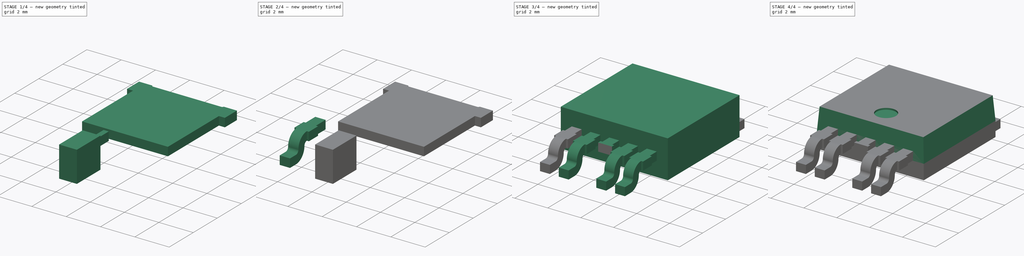
[diagram: build sequence overview — one tinted view per stage of 4, left to right]
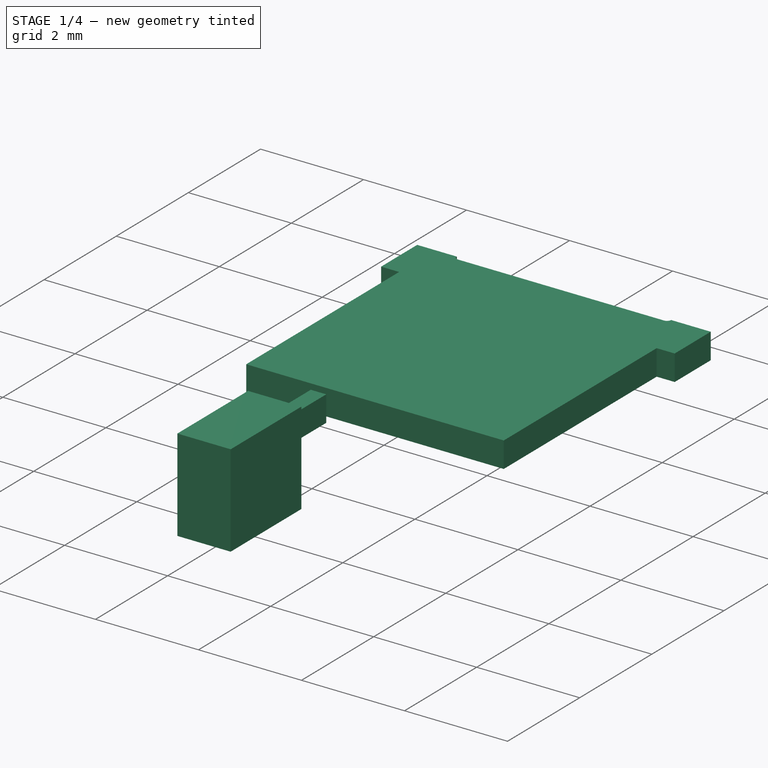
[diagram: stage 1 of 4 — iso view after this stage's code; geometry added in this stage tinted green]
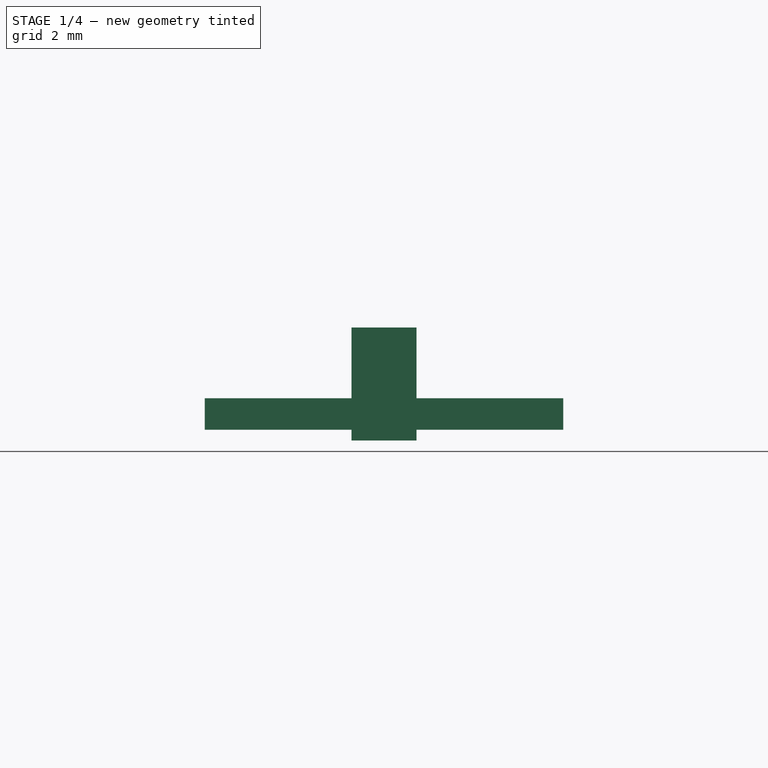
[diagram: stage 1 of 4 — front view after this stage's code; geometry added in this stage tinted green]
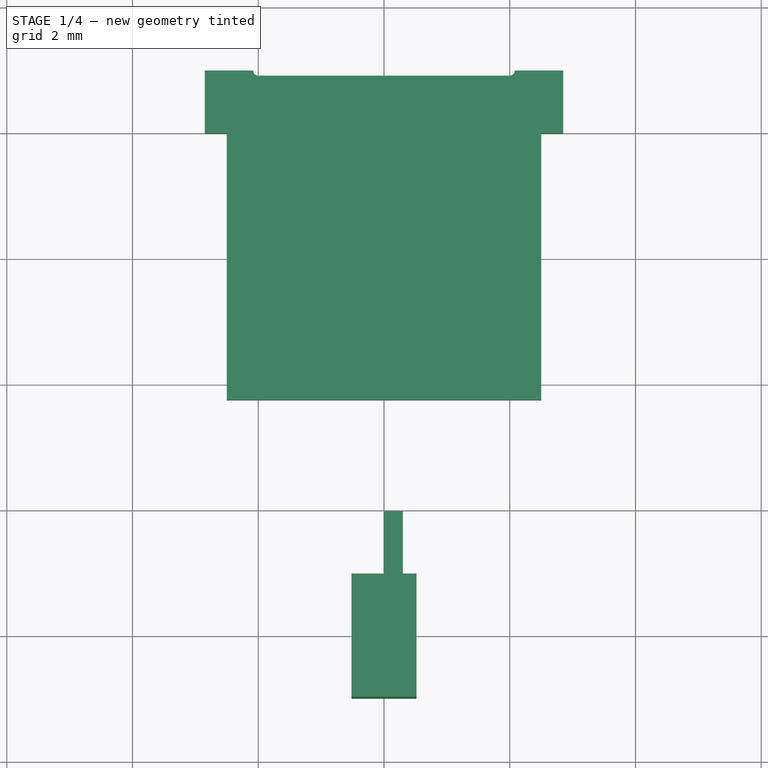
[diagram: stage 1 of 4 — top view after this stage's code; geometry added in this stage tinted green]
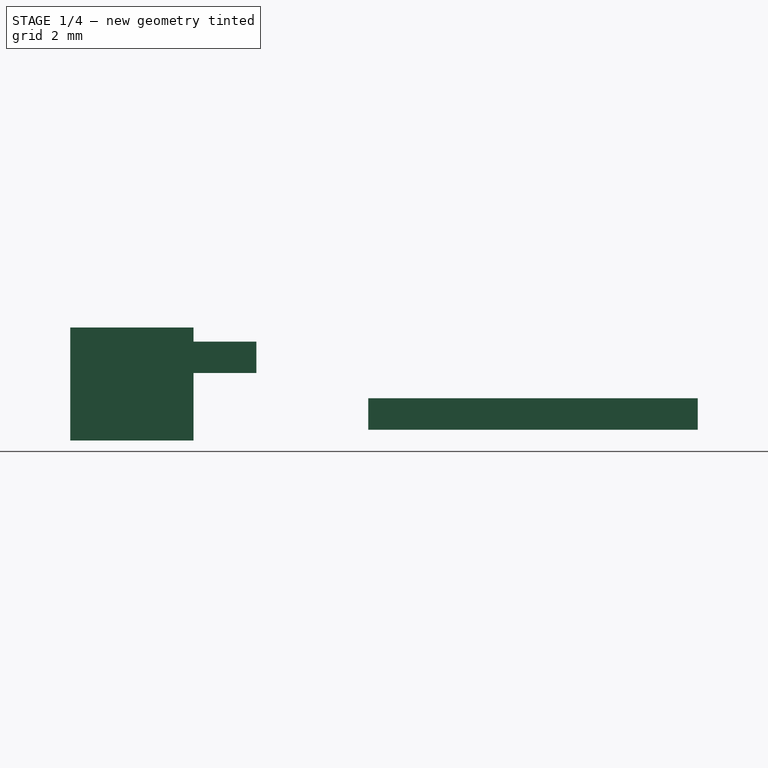
[diagram: stage 1 of 4 — right view after this stage's code; geometry added in this stage tinted green]
FCSTD DOCUMENT  (FreeCAD 0.16R6707 (Git))
Label: TO-252-5-11
License: All rights reserved
LicenseURL: http://en.wikipedia.org/wiki/All_rights_reserved
objects: Sketcher::SketchObject×6, PartDesign::Pad×5, App::DocumentObjectGroup×3, Part::MultiFuse×2, Part::Mirroring×1, Part::FeaturePython×1, Part::Cut×1, Part::Chamfer×1, PartDesign::Pocket×1
note: 24 computed .brp shape members not serialized (recipe doc carries the construction recipe); baked Part::Feature solids carry a one-line shape summary decoded from their .brp

FEATURE [Sketcher::SketchObject] Sketch  label="Lead sketch"
  Placement = pos=(0,0,0) rot=(0.57735,0.57735,0.57735;2.0944rad)
  sketch-geometry (21):
    g0: LineSegment [constr] StartX=-4.99 StartY=2.03852 StartZ=0 EndX=-4.99 EndY=-0.492403 EndZ=0
    g1: LineSegment [constr] StartX=-4.99 StartY=0.7 StartZ=0 EndX=-2.03 EndY=0.7 EndZ=0
    g2: LineSegment [constr] StartX=-4.49 StartY=2.03852 StartZ=0 EndX=-4.49 EndY=-0.492403 EndZ=0
    g3: LineSegment [constr] StartX=-3.79 StartY=2.03852 StartZ=0 EndX=-3.79 EndY=-0.492403 EndZ=0
    g4: LineSegment [constr] StartX=-2.03 StartY=2.03852 StartZ=0 EndX=-2.03 EndY=-0.492403 EndZ=0
    g5: GeomPoint [constr] X=-4.49 Y=0.7 Z=0
    g6: GeomPoint [constr] X=-3.79 Y=0.7 Z=0
    g7: LineSegment StartX=-4.99 StartY=5.2e-11 StartZ=0 EndX=-4.99 EndY=0.5 EndZ=0
    g8: LineSegment StartX=-4.99 StartY=5.2e-11 StartZ=0 EndX=-4.48999 EndY=5.2e-11 EndZ=0
    g9: LineSegment StartX=-4.99 StartY=0.5 StartZ=0 EndX=-4.49 EndY=0.5 EndZ=0
    g10: ArcOfCircle CenterX=-4.49 CenterY=0.7 CenterZ=0 NormalX=0 NormalY=0 NormalZ=1 Radius=0.2 StartAngle=4.71239 EndAngle=6.28319
    g11: LineSegment [constr] StartX=-3.59 StartY=2.03852 StartZ=0 EndX=-3.59 EndY=-0.492403 EndZ=0
    g12: ArcOfCircle CenterX=-4.49 CenterY=0.7 CenterZ=0 NormalX=0 NormalY=0 NormalZ=1 Radius=0.7 StartAngle=4.7124 EndAngle=6.28319
    g13: GeomPoint [constr] X=-3.59 Y=0.7 Z=0
    g14: ArcOfCircle CenterX=-3.59 CenterY=0.7 CenterZ=0 NormalX=0 NormalY=0 NormalZ=1 Radius=0.7 StartAngle=1.5708 EndAngle=3.14159
    g15: ArcOfCircle CenterX=-3.59 CenterY=0.7 CenterZ=0 NormalX=0 NormalY=0 NormalZ=1 Radius=0.2 StartAngle=1.5708 EndAngle=3.14159
    g16: LineSegment StartX=-3.59 StartY=1.4 StartZ=0 EndX=-2.03 EndY=1.4 EndZ=0
    g17: LineSegment StartX=-2.03 StartY=1.4 StartZ=0 EndX=-2.03 EndY=0.9 EndZ=0
    g18: LineSegment StartX=-2.03 StartY=0.9 StartZ=0 EndX=-3.59 EndY=0.9 EndZ=0
    g19: LineSegment [constr] StartX=-4.99 StartY=2.03852 StartZ=0 EndX=-2.03 EndY=2.03852 EndZ=0
    g20: LineSegment [constr] StartX=-4.99 StartY=-0.492403 StartZ=0 EndX=-2.03 EndY=-0.492403 EndZ=0
  constraints (62):
    c: Vertical(g0)
    c: DistanceX(g0,g-1) = 4.99
    c: Horizontal(g1)
    c: DistanceY(g-1,g1) = 0.7
    c: Vertical(g2)
    c: Vertical(g3)
    c: DistanceX(g0,g2) = 0.5
    c: DistanceX(g2,g3) = 0.7
    c: Vertical(g4)
    c: DistanceX(g0,g4) = 2.96
    c: PointOnObject(g5,g2)
    c: PointOnObject(g5,g1)
    c: PointOnObject(g6,g3)
    c: PointOnObject(g6,g1)
    c: PointOnObject(g7,g-1)
    c: Vertical(g7)
    c: DistanceY(g7,g7) = 0.5
    c: PointOnObject(g7,g0)
    c: Coincident(g8,g7)
    c: Horizontal(g8)
    c: Coincident(g9,g7)
    c: PointOnObject(g9,g2)
    c: Horizontal(g9)
    c: Coincident(g10,g5)
    c: Coincident(g10,g9)
    c: PointOnObject(g10,g1)
    c: Vertical(g11)
    c: DistanceX(g3,g11) = 0.2
    c: Coincident(g12,g5)
    c: Coincident(g12,g6)
    c: Coincident(g12,g8)
    c: PointOnObject(g13,g1)
    c: PointOnObject(g13,g11)
    c: Coincident(g14,g13)
    c: Coincident(g14,g10)
    c: PointOnObject(g14,g11)
    c: Coincident(g15,g6)
    c: PointOnObject(g15,g11)
    c: Coincident(g15,g13)
    c: Tangent(g14,g16) = 1.5708
    c: Coincident(g16,g17)
    c: Vertical(g17)
    c: Coincident(g17,g18)
    c: Coincident(g18,g15)
    c: Horizontal(g18)
    c: PointOnObject(g16,g4)
    c: PointOnObject(g1,g0)
    c: PointOnObject(g1,g4)
    c: Coincident(g19,g0)
    c: Coincident(g19,g4)
    c: Horizontal(g19)
    c: PointOnObject(g2,g19)
    c: PointOnObject(g3,g19)
    c: PointOnObject(g11,g19)
    c: Coincident(g20,g0)
    c: Coincident(g20,g4)
    c: Horizontal(g20)
    c: PointOnObject(g2,g20)
    c: PointOnObject(g3,g20)
    c: PointOnObject(g11,g20)
    c: DistanceY(g-1,g4) = 2.03852
    c: DistanceY(g4,g-1) = 0.492403
FEATURE [PartDesign::Pad] Pad  label="Lead pad"
  Length = 0.3
  Length2 = 100
  Placement = pos=(0,0,0) rot=(0.57735,0.57735,0.57735;2.0944rad)
  Sketch = -> Sketch
  Type = 0
FEATURE [Sketcher::SketchObject] Sketch002  label="Pin 3 Cutter sketch"
  Placement = pos=(0,-4.99,0) rot=(1,0,0;1.5708rad)
  sketch-geometry (4):
    g0: LineSegment StartX=-0.517475 StartY=1.6241 StartZ=0 EndX=0.516751 EndY=1.6241 EndZ=0
    g1: LineSegment StartX=0.516751 StartY=1.6241 StartZ=0 EndX=0.516751 EndY=-0.172863 EndZ=0
    g2: LineSegment StartX=0.516751 StartY=-0.172863 StartZ=0 EndX=-0.517475 EndY=-0.172863 EndZ=0
    g3: LineSegment StartX=-0.517475 StartY=-0.172863 StartZ=0 EndX=-0.517475 EndY=1.6241 EndZ=0
  constraints (8):
    c: Coincident(g0,g1)
    c: Coincident(g1,g2)
    c: Coincident(g2,g3)
    c: Coincident(g3,g0)
    c: Horizontal(g0)
    c: Horizontal(g2)
    c: Vertical(g1)
    c: Vertical(g3)
FEATURE [PartDesign::Pad] Pad002  label="Pin 3 Cutter pad"
  Length = 1.96
  Length2 = 100
  Placement = pos=(0,-4.99,0) rot=(1,0,0;1.5708rad)
  Reversed = true
  Sketch = -> Sketch002
  Type = 0
FEATURE [Sketcher::SketchObject] Sketch005  label="Tab sketch"
  Placement = pos=(0,0,-0.001) rot=(0,0,1;0rad)
  sketch-geometry (12):
    g0: LineSegment StartX=2.85 StartY=4.99 StartZ=0 EndX=2.85 EndY=3.99 EndZ=0
    g1: LineSegment StartX=-2.85 StartY=3.99 StartZ=0 EndX=-2.85 EndY=4.99 EndZ=0
    g2: LineSegment StartX=-2.85 StartY=3.99 StartZ=0 EndX=-2.5 EndY=3.99 EndZ=0
    g3: LineSegment StartX=-2.5 StartY=3.99 StartZ=0 EndX=-2.5 EndY=-0.25 EndZ=0
    g4: LineSegment StartX=-2.5 StartY=-0.25 StartZ=0 EndX=2.5 EndY=-0.25 EndZ=0
    g5: LineSegment StartX=2.5 StartY=-0.25 StartZ=0 EndX=2.5 EndY=3.99 EndZ=0
    g6: LineSegment StartX=2.5 StartY=3.99 StartZ=0 EndX=2.85 EndY=3.99 EndZ=0
    g7: LineSegment StartX=-2.85 StartY=4.99 StartZ=0 EndX=-2.08 EndY=4.99 EndZ=0
    g8: ArcOfCircle CenterX=-2 CenterY=4.99 CenterZ=0 NormalX=0 NormalY=0 NormalZ=1 Radius=0.08 StartAngle=3.14159 EndAngle=4.71239
    g9: LineSegment StartX=2.85 StartY=4.99 StartZ=0 EndX=2.08 EndY=4.99 EndZ=0
    g10: ArcOfCircle CenterX=2 CenterY=4.99 CenterZ=0 NormalX=0 NormalY=0 NormalZ=1 Radius=0.08 StartAngle=4.71239 EndAngle=6.28319
    g11: LineSegment StartX=-2 StartY=4.91 StartZ=0 EndX=2 EndY=4.91 EndZ=0
  constraints (38):
    c: Vertical(g0)
    c: Vertical(g1)
    c: Symmetric(g1,g0,g-2)
    c: DistanceY(g0,g0) = 1
    c: DistanceY(g-1,g0) = 4.99
    c: Equal(g1,g0)
    c: DistanceX(g1,g0) = 5.7
    c: Coincident(g1,g2)
    c: Coincident(g2,g3)
    c: Vertical(g3)
    c: Coincident(g3,g4)
    c: Horizontal(g4)
    c: Coincident(g4,g5)
    c: Vertical(g5)
    c: Coincident(g5,g6)
    c: Coincident(g6,g0)
    c: Horizontal(g6)
    c: Horizontal(g2)
    c: Symmetric(g3,g4,g-2)
    c: DistanceX(g4,g4) = 5
    c: DistanceY(g3,g3) = 4.24
    c: Coincident(g1,g7)
    c: Horizontal(g7)
    c: Coincident(g8,g7)
    c: Coincident(g9,g0)
    c: Horizontal(g9)
    c: Symmetric(g7,g9,g-2)
    c: Coincident(g10,g9)
    c: Equal(g8,g10)
    c: Coincident(g11,g8)
    c: Coincident(g11,g10)
    c: Horizontal(g11)
    c: PointOnObject(g8,g7)
    c: PointOnObject(g10,g9)
    c: DistanceX(g8,g10) = 4
    c: Radius(g8) = 0.08
    c: Angle(g8) = 1.5708
    c: Angle(g10) = 1.5708
FEATURE [PartDesign::Pad] Pad004  label="TAB"
  Length = 0.5
  Length2 = 100
  Placement = pos=(0,0,-0.001) rot=(0,0,1;0rad)
  Sketch = -> Sketch005
  Type = 0
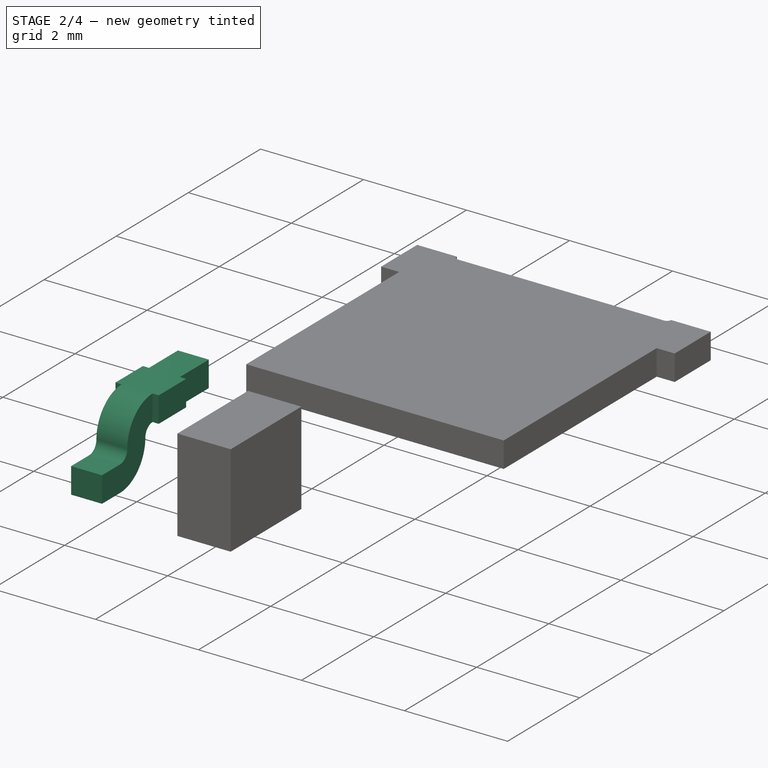
[diagram: stage 2 of 4 — iso view after this stage's code; geometry added in this stage tinted green]
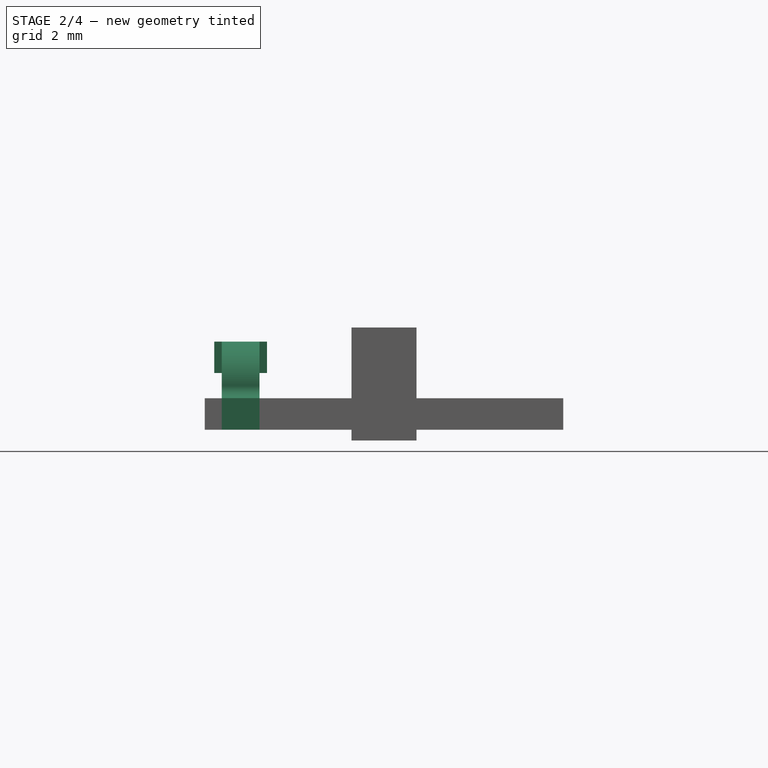
[diagram: stage 2 of 4 — front view after this stage's code; geometry added in this stage tinted green]
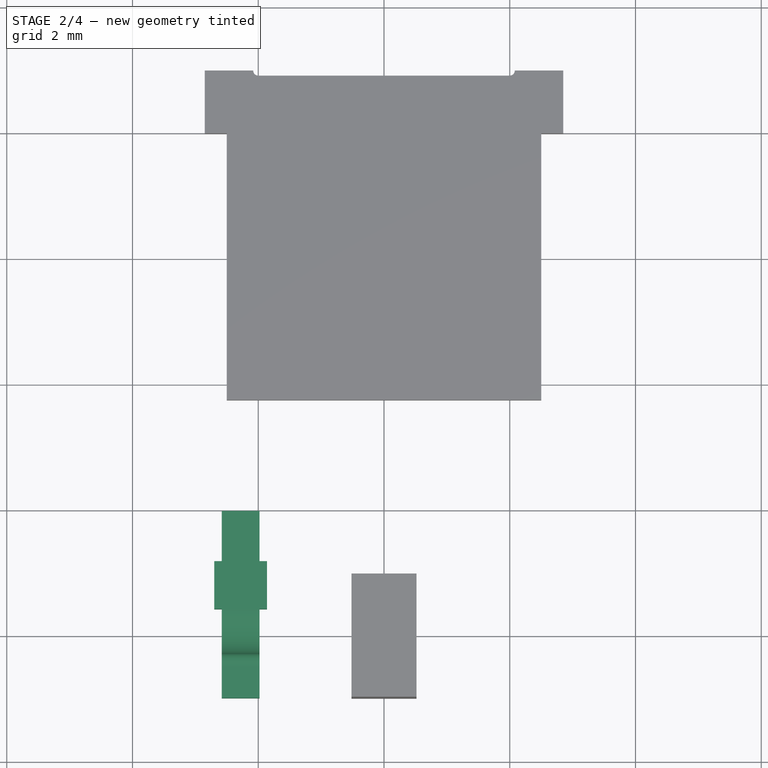
[diagram: stage 2 of 4 — top view after this stage's code; geometry added in this stage tinted green]
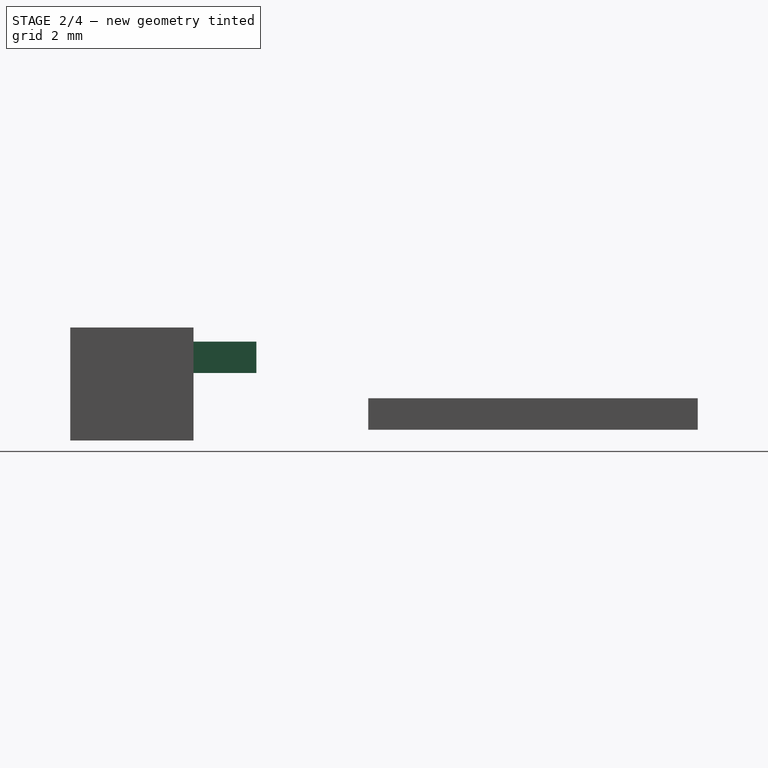
[diagram: stage 2 of 4 — right view after this stage's code; geometry added in this stage tinted green]
FEATURE [Sketcher::SketchObject] Sketch001  label="Lead Bulge sketch"
  ExternalGeometry = -> [Pad]
  Placement = pos=(0.3,0,0) rot=(0.57735,0.57735,0.57735;2.0944rad)
  Support = -> Pad [Face12]
  sketch-geometry (4):
    g0: LineSegment StartX=-3.59 StartY=1.4 StartZ=0 EndX=-2.83 EndY=1.4 EndZ=0
    g1: LineSegment StartX=-2.83 StartY=1.4 StartZ=0 EndX=-2.83 EndY=0.9 EndZ=0
    g2: LineSegment StartX=-2.83 StartY=0.9 StartZ=0 EndX=-3.59 EndY=0.9 EndZ=0
    g3: LineSegment StartX=-3.59 StartY=0.9 StartZ=0 EndX=-3.59 EndY=1.4 EndZ=0
  constraints (11):
    c: Coincident(g0,g1)
    c: Coincident(g1,g2)
    c: Coincident(g2,g3)
    c: Coincident(g3,g0)
    c: Horizontal(g0)
    c: Horizontal(g2)
    c: Vertical(g1)
    c: Vertical(g3)
    c: Coincident(g0,g-3)
    c: DistanceX(g0,g-3) = 0.8
    c: PointOnObject(g1,g-4)
FEATURE [PartDesign::Pad] Pad001  label="Lead Bulge pad"
  Length = 0.12
  Length2 = 100
  Placement = pos=(0,0,0) rot=(0.57735,0.57735,0.57735;2.0944rad)
  Sketch = -> Sketch001
  Type = 0
FEATURE [Part::Mirroring] Part__Mirroring  label="Lead Bulge mirror"
  Base = (0,0,0)
  Normal = (1,0,0)
  Source = -> Pad001
FEATURE [Part::MultiFuse] Fusion  label="Lead fusion"
  Placement = pos=(-2.28,0,0) rot=(0,0,1;0rad)
  Shapes = -> [Pad001,Part__Mirroring]
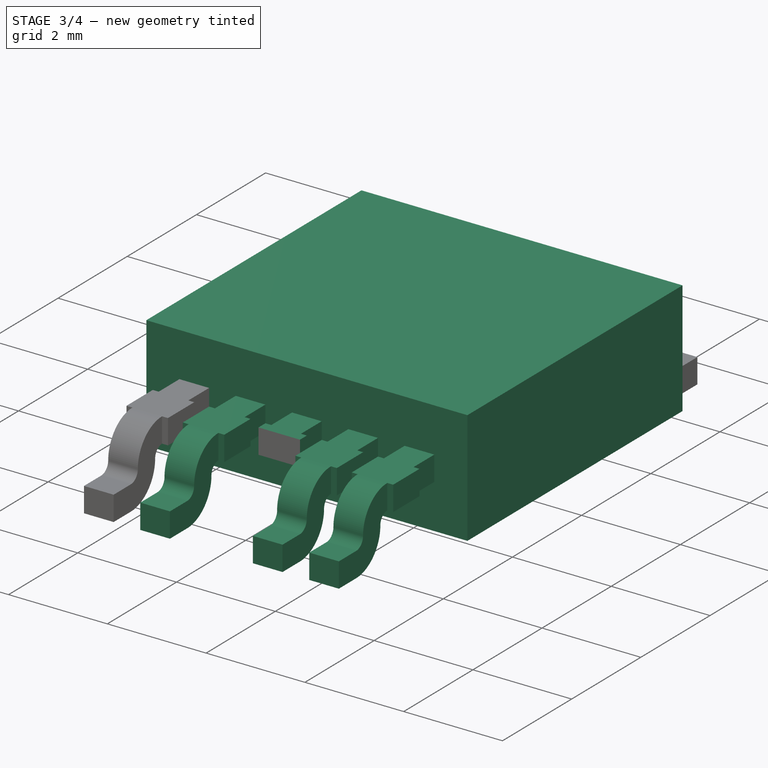
[diagram: stage 3 of 4 — iso view after this stage's code; geometry added in this stage tinted green]
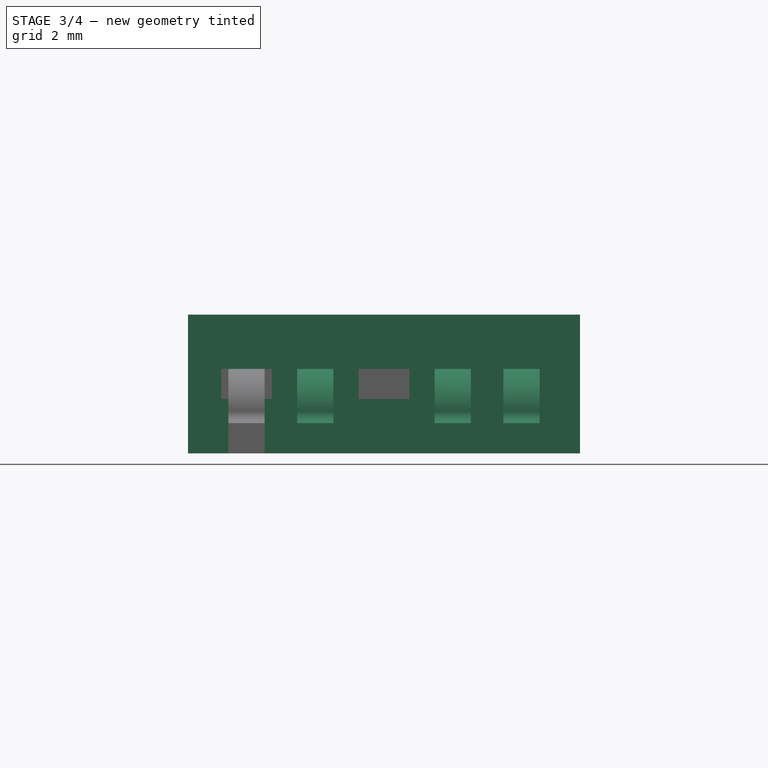
[diagram: stage 3 of 4 — front view after this stage's code; geometry added in this stage tinted green]
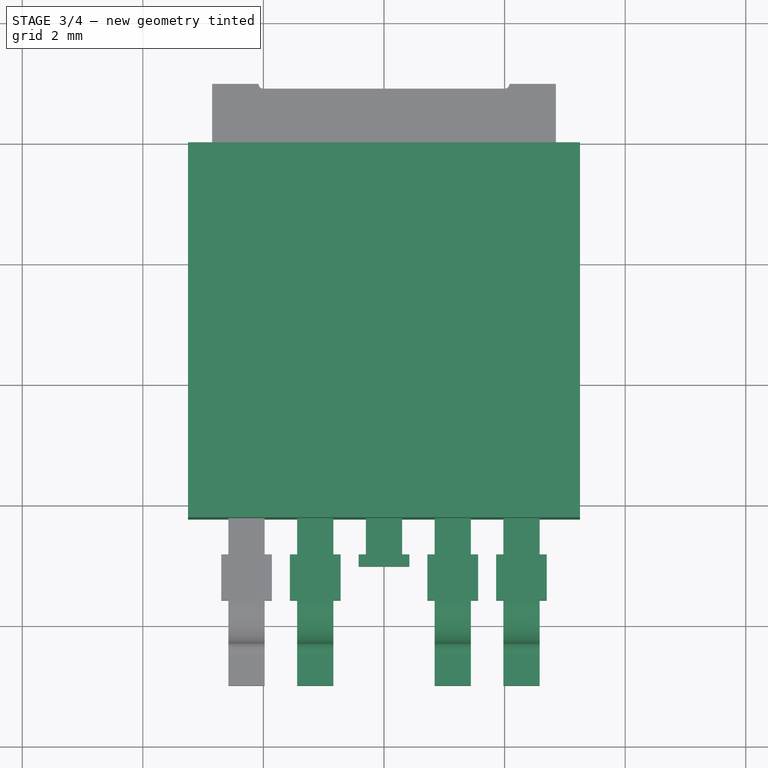
[diagram: stage 3 of 4 — top view after this stage's code; geometry added in this stage tinted green]
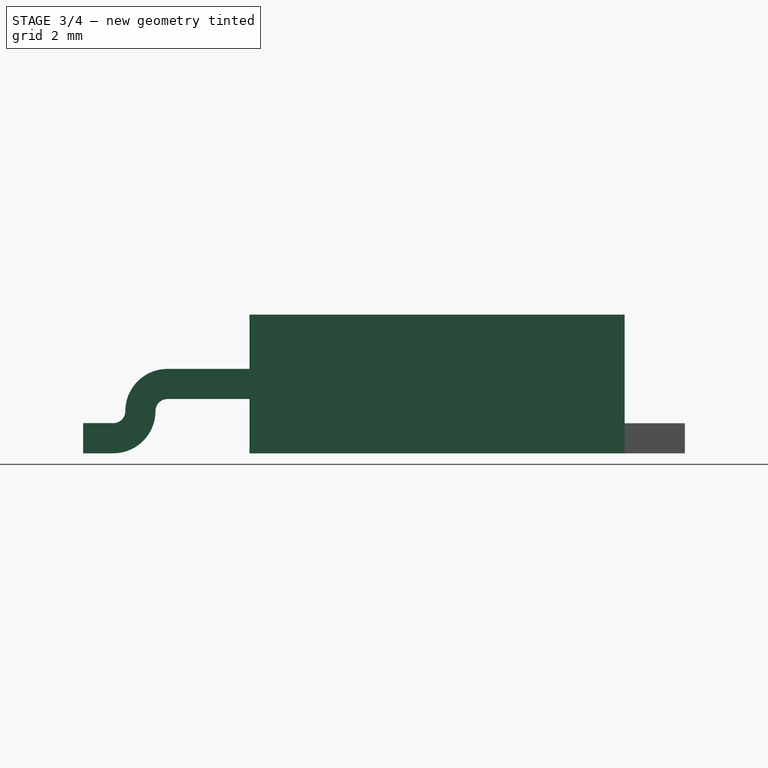
[diagram: stage 3 of 4 — right view after this stage's code; geometry added in this stage tinted green]
FEATURE [Part::FeaturePython] Array  label="Lead array"  # Draft array (typed FeaturePython)
  Angle = 360
  ArrayType = 0
  Axis = (0,0,1)
  Base = -> Fusion
  Center = (0,0,0)
  Fuse = false
  IntervalAxis = (0,0,0)
  IntervalX = (1.14,0,0)
  IntervalY = (0,1,0)
  IntervalZ = (0,0,0)
  NumberPolar = 1
  NumberX = 5
  NumberY = 1
  NumberZ = 1
FEATURE [Part::Cut] Cut  label="LEADS"
  Base = -> Array
  Tool = -> Pad002
FEATURE [Sketcher::SketchObject] Sketch003  label="Body sketch"
  sketch-geometry (4):
    g0: LineSegment StartX=-3.25 StartY=3.99 StartZ=0 EndX=3.25 EndY=3.99 EndZ=0
    g1: LineSegment StartX=3.25 StartY=3.99 StartZ=0 EndX=3.25 EndY=-2.23 EndZ=0
    g2: LineSegment StartX=3.25 StartY=-2.23 StartZ=0 EndX=-3.25 EndY=-2.23 EndZ=0
    g3: LineSegment StartX=-3.25 StartY=-2.23 StartZ=0 EndX=-3.25 EndY=3.99 EndZ=0
  constraints (12):
    c: Coincident(g0,g1)
    c: Coincident(g1,g2)
    c: Coincident(g2,g3)
    c: Coincident(g3,g0)
    c: Horizontal(g0)
    c: Horizontal(g2)
    c: Vertical(g1)
    c: Vertical(g3)
    c: Symmetric(g0,g0,g-2)
    c: DistanceY(g1,g1) = 6.22
    c: DistanceX(g0,g0) = 6.5
    c: DistanceY(g2,g-1) = 2.23
FEATURE [PartDesign::Pad] Pad003  label="Body pad"
  Length = 2.3
  Length2 = 100
  Sketch = -> Sketch003
  Type = 0
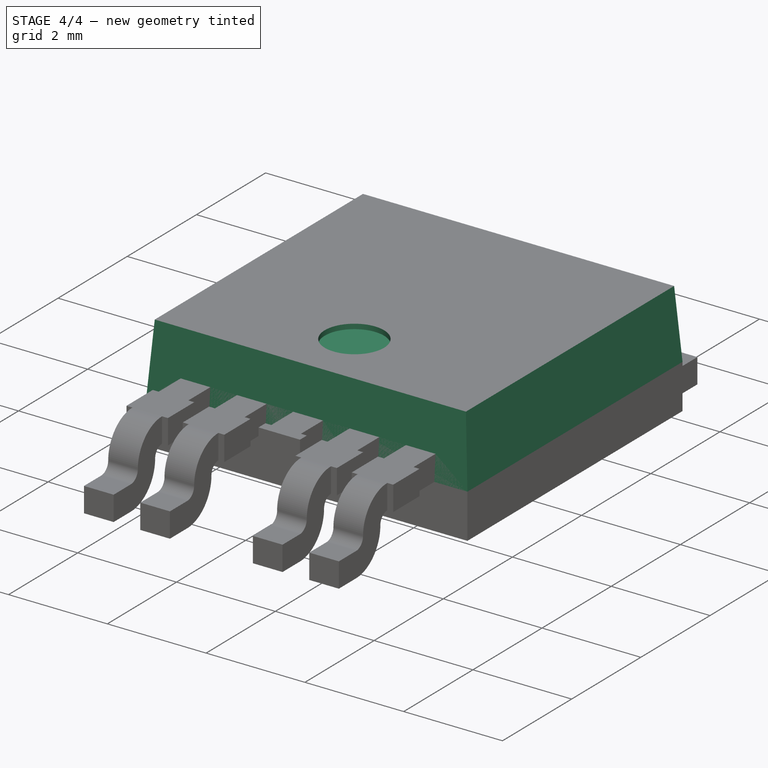
[diagram: stage 4 of 4 — iso view after this stage's code; geometry added in this stage tinted green]
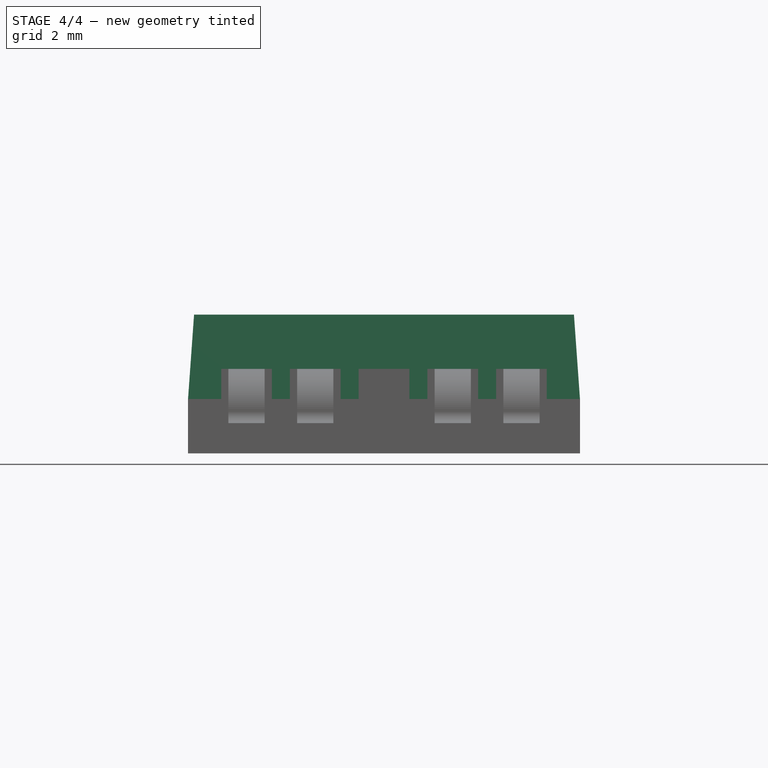
[diagram: stage 4 of 4 — front view after this stage's code; geometry added in this stage tinted green]
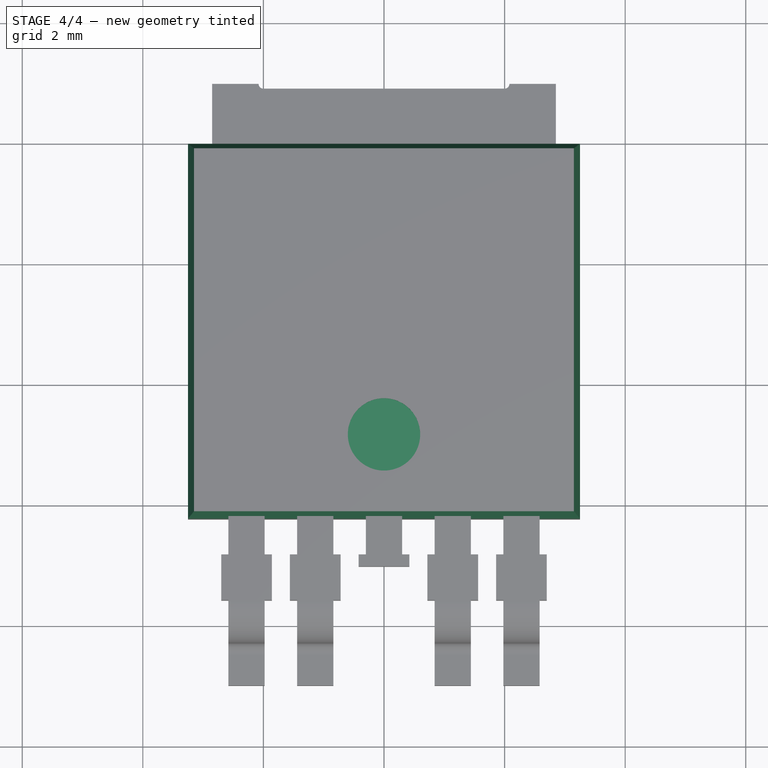
[diagram: stage 4 of 4 — top view after this stage's code; geometry added in this stage tinted green]
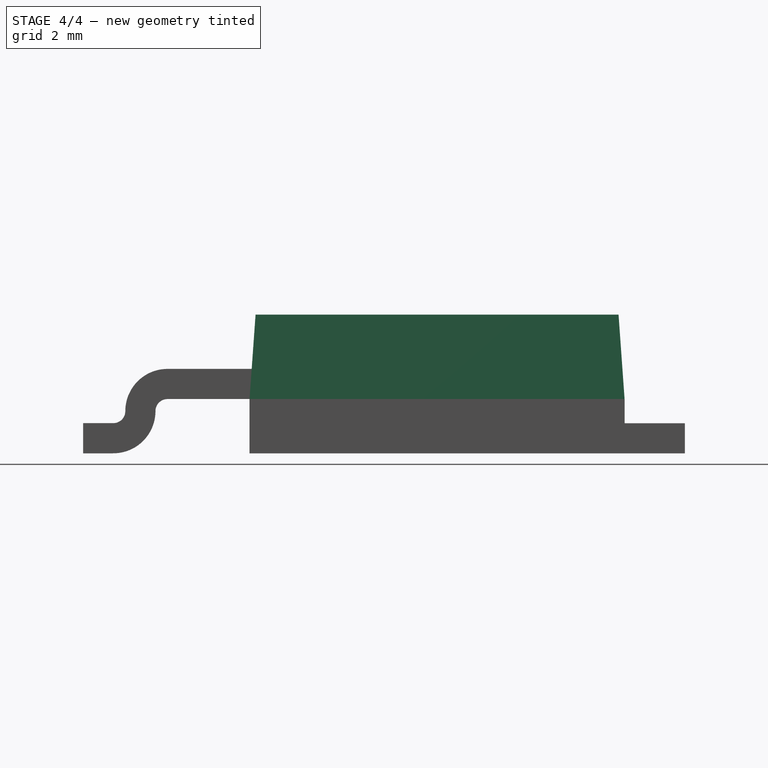
[diagram: stage 4 of 4 — right view after this stage's code; geometry added in this stage tinted green]
FEATURE [Part::Chamfer] Chamfer  label="Body chamfer"
  Base = -> Pad003
  Edges = 4 edges: [Edge4 r1=1.4 r2=0.1,Edge7 r1=1.4 r2=0.1,Edge10 r1=1.4 r2=0.1,Edge12 r1=1.4 r2=0.1]
FEATURE [Sketcher::SketchObject] Sketch004  label="Index Mark sketch"
  Placement = pos=(0,0,2.3) rot=(0,0,1;0rad)
  Support = -> Chamfer [Face8]
  sketch-geometry (1):
    g0: Circle CenterX=0 CenterY=-0.855722 CenterZ=0 NormalX=0 NormalY=0 NormalZ=1 Radius=0.6
  constraints (3):
    c: Radius(g0) = 0.6
    c: PointOnObject(g0,g-2)
    c: DistanceY(g0,g-1) = 0.855722
FEATURE [PartDesign::Pocket] Pocket  label="BODY"
  Length = 0.1
  Sketch = -> Sketch004
  Type = 0
FEATURE [Part::MultiFuse] Fusion001  label="TO-252-5-11"
FEATURE [App::DocumentObjectGroup] Group  label="Body"
  Group = -> [Pocket,Chamfer]
FEATURE [App::DocumentObjectGroup] Group001  label="Leads"
  Group = -> [Cut,Pad]
FEATURE [App::DocumentObjectGroup] Group002  label="Tab"
  Group = -> [Pad004]
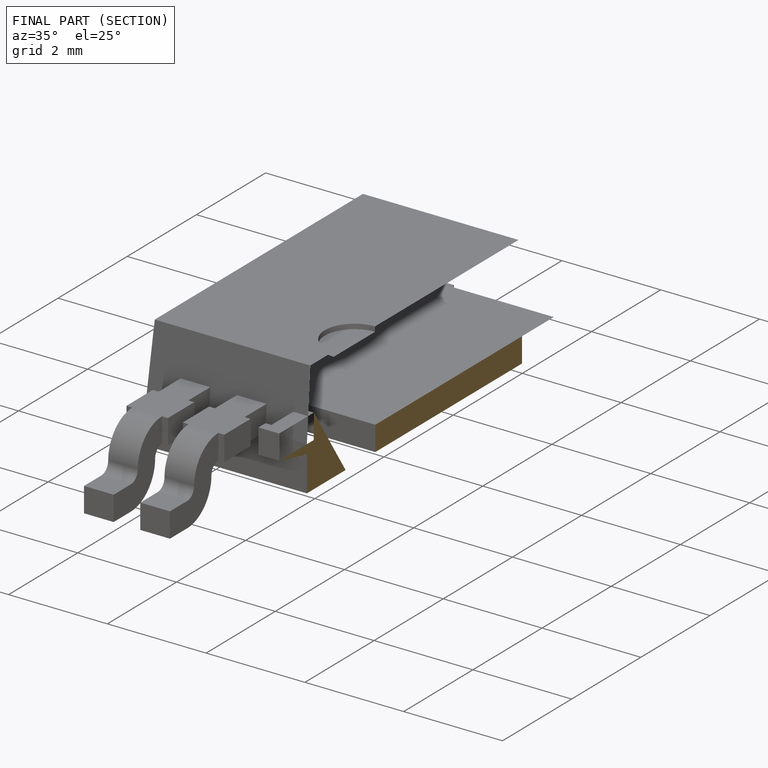
[diagram: finished part — half-section view (interior)]
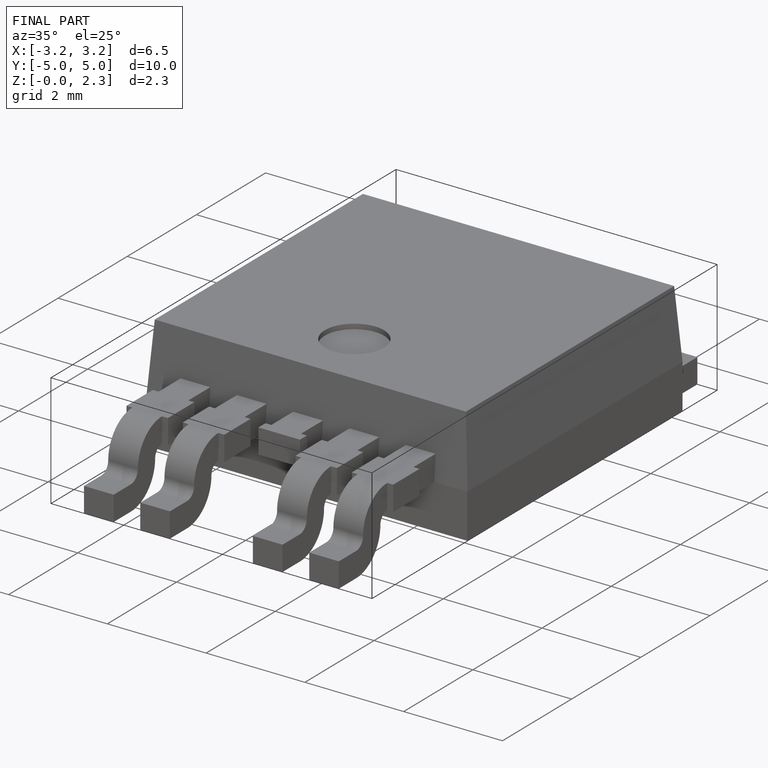
[diagram: finished part — iso view with bounding-box wireframe]
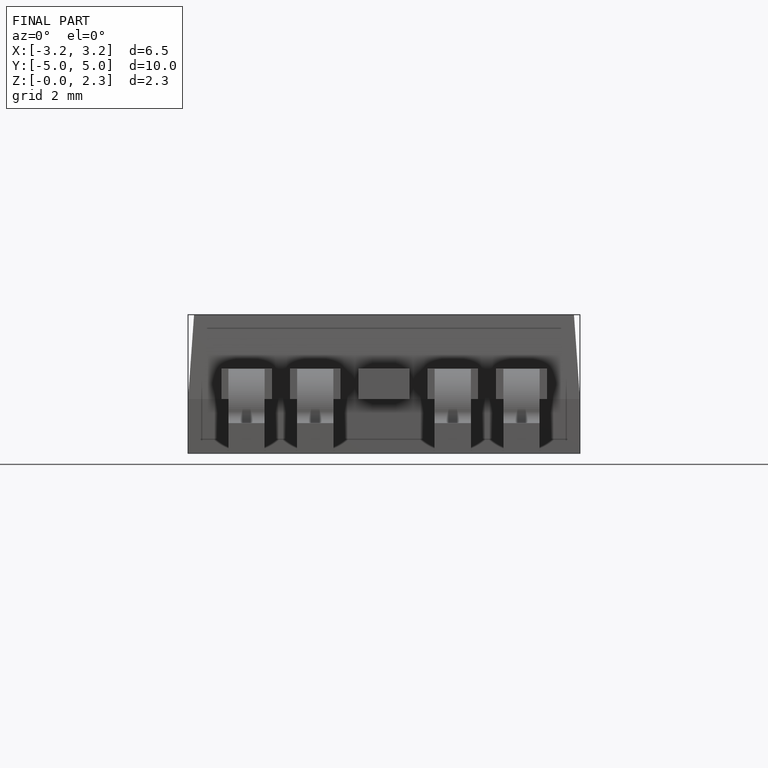
[diagram: finished part — front view with bounding-box wireframe]
